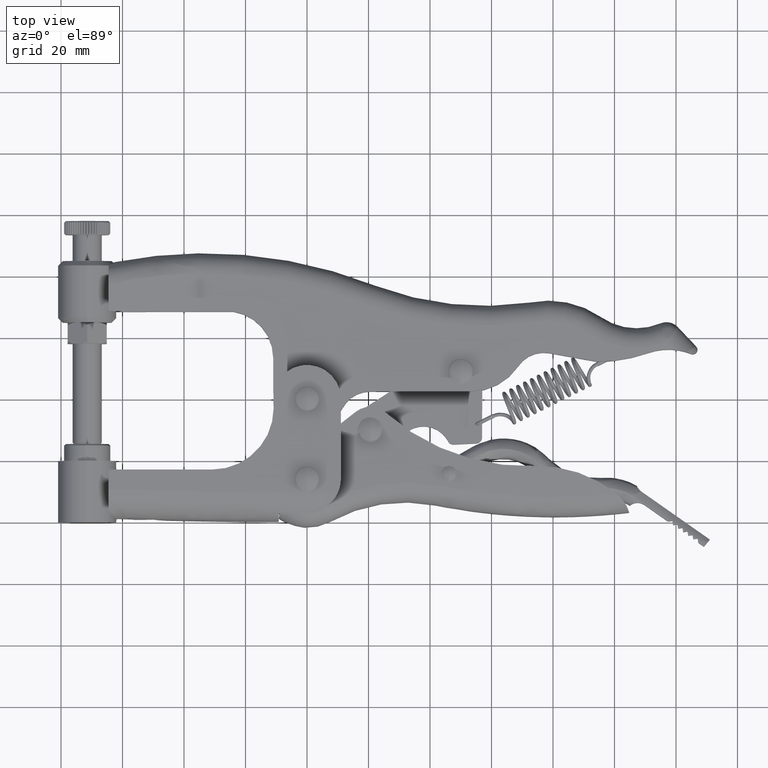
[diagram: clean part render]
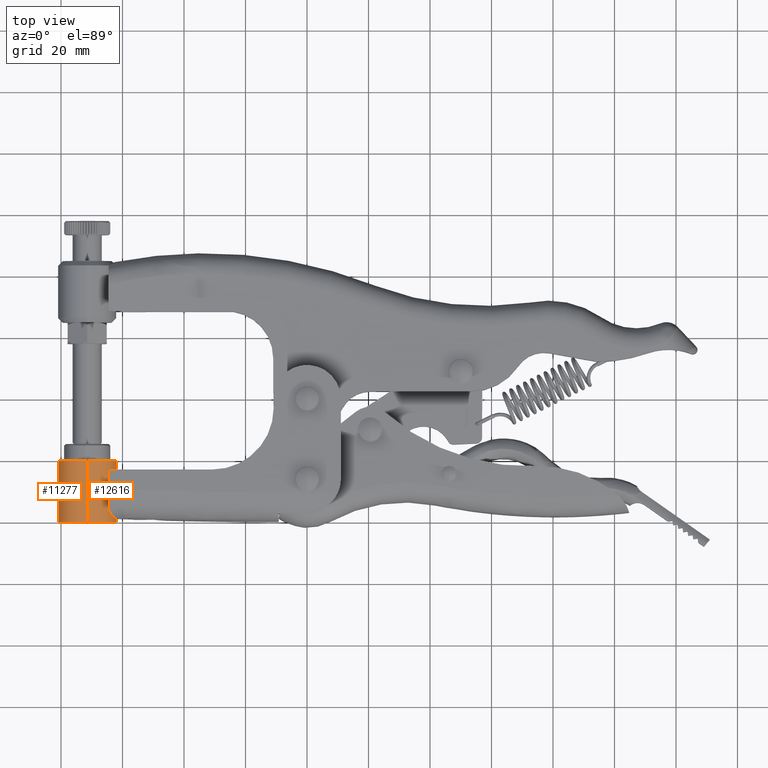
[diagram: same view with one multi-face feature highlighted, each face labeled with its STEP entity id]
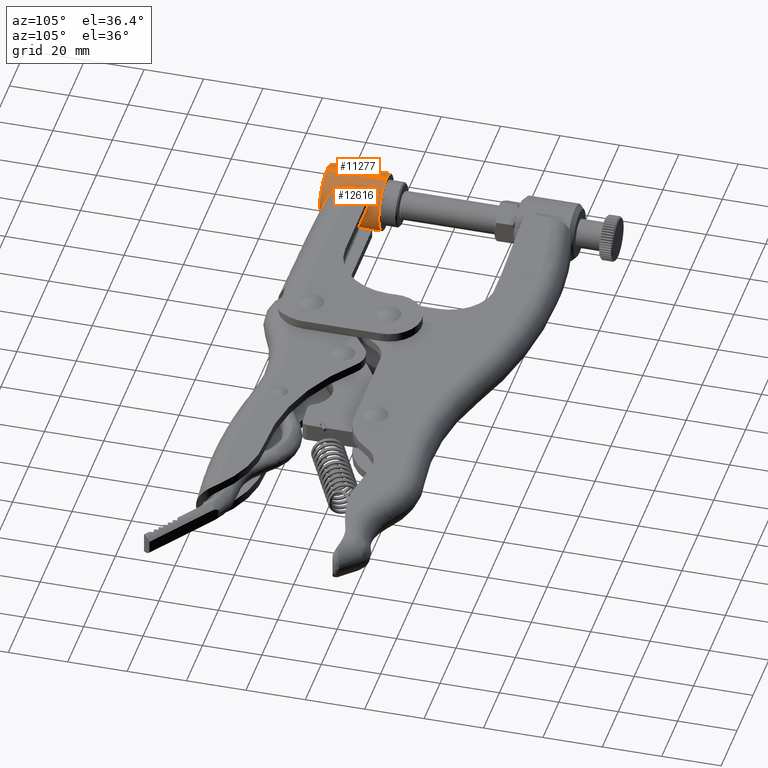
[diagram: same view with one multi-face feature highlighted, each face labeled with its STEP entity id]
A machine part, top view. The highlighted faces form ONE feature: a constant-radius fillet chain: 2 tangent blend faces with common blend radius 9.5 mm. The faces share edges in the B-rep.
A second angle (auxiliary view) of the same feature is appended — it is thin or edge-on in the first view.
Their STEP definitions:
[1] entity #11277 (Cylinder):
#1508 = CIRCLE ( 'NONE', #6993, 9.500000000000000000 ) ;
#2298 = EDGE_LOOP ( 'NONE', ( #14921, #24114, #10956, #23519 ) ) ;
#3883 = VERTEX_POINT ( 'NONE', #24603 ) ;
#4673 = CARTESIAN_POINT ( 'NONE',  ( -71.50000000007058500, -20.08000000000008400, 2.356861862865605300E-015 ) ) ;
#5699 = CARTESIAN_POINT ( 'NONE',  ( -71.50000000007058500, -20.08000000000008400, 9.500000000000001800 ) ) ;
#6993 = AXIS2_PLACEMENT_3D ( 'NONE', #13483, #30051, #15860 ) ;
#7987 = CYLINDRICAL_SURFACE ( 'NONE', #30057, 9.500000000000000000 ) ;
#8844 = CARTESIAN_POINT ( 'NONE',  ( -71.50000000007058500, -40.08000000000009100, 9.500000000000001800 ) ) ;
#10956 = ORIENTED_EDGE ( 'NONE', *, *, #17403, .T. ) ;
#11277 = ADVANCED_FACE ( 'NONE', ( #14315 ), #7987, .T. ) ;
#12444 = VERTEX_POINT ( 'NONE', #23876 ) ;
#12850 = DIRECTION ( 'NONE',  ( -0.0000000000000000000, -1.000000000000000000, -0.0000000000000000000 ) ) ;
#13169 = DIRECTION ( 'NONE',  ( 0.0000000000000000000, 1.000000000000000000, 0.0000000000000000000 ) ) ;
#13483 = CARTESIAN_POINT ( 'NONE',  ( -71.50000000007058500, -20.08000000000008400, 2.356861862865605300E-015 ) ) ;
#14315 = FACE_OUTER_BOUND ( 'NONE', #2298, .T. ) ;
#14921 = ORIENTED_EDGE ( 'NONE', *, *, #30088, .F. ) ;
#15176 = DIRECTION ( 'NONE',  ( -0.0000000000000000000, -1.000000000000000000, -0.0000000000000000000 ) ) ;
#15696 = LINE ( 'NONE', #5699, #27576 ) ;
#15860 = DIRECTION ( 'NONE',  ( 0.0000000000000000000, 0.0000000000000000000, 1.000000000000000000 ) ) ;
#16000 = VERTEX_POINT ( 'NONE', #17530 ) ;
#17403 = EDGE_CURVE ( 'NONE', #3883, #12444, #24895, .T. ) ;
#17530 = CARTESIAN_POINT ( 'NONE',  ( -71.50000000007058500, -20.08000000000008400, 9.500000000000001800 ) ) ;
#17729 = VERTEX_POINT ( 'NONE', #8844 ) ;
#18589 = VECTOR ( 'NONE', #15176, 1000.000000000000000 ) ;
#21234 = DIRECTION ( 'NONE',  ( -0.0000000000000000000, -1.000000000000000000, -0.0000000000000000000 ) ) ;
#21776 = EDGE_CURVE ( 'NONE', #12444, #17729, #28208, .T. ) ;
#21924 = EDGE_CURVE ( 'NONE', #3883, #16000, #1508, .T. ) ;
#23519 = ORIENTED_EDGE ( 'NONE', *, *, #21776, .T. ) ;
#23876 = CARTESIAN_POINT ( 'NONE',  ( -71.50000000007058500, -40.08000000000009100, -9.499999999999998200 ) ) ;
#24114 = ORIENTED_EDGE ( 'NONE', *, *, #21924, .F. ) ;
#24603 = CARTESIAN_POINT ( 'NONE',  ( -71.50000000007058500, -20.08000000000008400, -9.499999999999998200 ) ) ;
#24625 = CARTESIAN_POINT ( 'NONE',  ( -71.50000000007058500, -20.08000000000008400, -9.499999999999998200 ) ) ;
#24895 = LINE ( 'NONE', #24625, #18589 ) ;
#27370 = CARTESIAN_POINT ( 'NONE',  ( -71.50000000007058500, -40.08000000000009100, 2.356861862865605300E-015 ) ) ;
#27576 = VECTOR ( 'NONE', #12850, 1000.000000000000000 ) ;
#28208 = CIRCLE ( 'NONE', #28250, 9.500000000000000000 ) ;
#28250 = AXIS2_PLACEMENT_3D ( 'NONE', #27370, #13169, #29742 ) ;
#29742 = DIRECTION ( 'NONE',  ( 0.0000000000000000000, 0.0000000000000000000, 1.000000000000000000 ) ) ;
#30051 = DIRECTION ( 'NONE',  ( 0.0000000000000000000, 1.000000000000000000, 0.0000000000000000000 ) ) ;
#30057 = AXIS2_PLACEMENT_3D ( 'NONE', #4673, #21234, #30563 ) ;
#30088 = EDGE_CURVE ( 'NONE', #16000, #17729, #15696, .T. ) ;
#30563 = DIRECTION ( 'NONE',  ( 0.0000000000000000000, 0.0000000000000000000, -1.000000000000000000 ) ) ;
[2] entity #12616 (Cylinder):
#276 = CARTESIAN_POINT ( 'NONE',  ( -63.66873752018189900, -33.19085159309631200, -5.383097506780270400 ) ) ;
#369 = CARTESIAN_POINT ( 'NONE',  ( -62.00018189158113600, -36.01688755221508100, -0.2032330532681224100 ) ) ;
#405 = CARTESIAN_POINT ( 'NONE',  ( -64.49999999999995700, -44.82483779516833500, -6.422616289255547200 ) ) ;
#470 = CARTESIAN_POINT ( 'NONE',  ( -63.94626198162362100, -32.57586115584202000, 5.765960569321396000 ) ) ;
#688 = CARTESIAN_POINT ( 'NONE',  ( -71.50000000007058500, -20.08000000000008400, 2.356861862865605300E-015 ) ) ;
#821 = CARTESIAN_POINT ( 'NONE',  ( -62.83160810248247700, -38.16673595354426100, -3.898178235663626500 ) ) ;
#928 = CARTESIAN_POINT ( 'NONE',  ( -62.50335281598697200, -38.50300976454805400, 3.066549485214240100 ) ) ;
#1094 = VERTEX_POINT ( 'NONE', #6468 ) ;
#1248 = EDGE_CURVE ( 'NONE', #28625, #1094, #4802, .T. ) ;
#1667 = EDGE_LOOP ( 'NONE', ( #2420, #23541, #29625, #10041 ) ) ;
#1955 = ORIENTED_EDGE ( 'NONE', *, *, #23970, .F. ) ;
#1960 = LINE ( 'NONE', #30581, #8219 ) ;
#2339 = CARTESIAN_POINT ( 'NONE',  ( -64.50000000000005700, -30.84296218311604300, -6.422616289255660000 ) ) ;
#2420 = ORIENTED_EDGE ( 'NONE', *, *, #16298, .T. ) ;
#2641 = CARTESIAN_POINT ( 'NONE',  ( -63.23913094217596900, -34.01924217925407100, -4.699334689974348200 ) ) ;
#2748 = CARTESIAN_POINT ( 'NONE',  ( -62.02310362345634300, -35.98319486392855300, 0.7638834789930201200 ) ) ;
#2858 = CARTESIAN_POINT ( 'NONE',  ( -64.31741614749044800, -31.56626122569650800, 6.220534707599197700 ) ) ;
#3193 = CARTESIAN_POINT ( 'NONE',  ( -62.50513133100664500, -38.50118723790780000, -3.071766348928229200 ) ) ;
#3287 = CARTESIAN_POINT ( 'NONE',  ( -62.94346931941296900, -38.05215480852729800, 4.169655955160283900 ) ) ;
#3883 = VERTEX_POINT ( 'NONE', #24603 ) ;
#4802 = B_SPLINE_CURVE_WITH_KNOTS ( 'NONE', 3,
 ( #2339, #19101, #9644, #26237, #12043, #28631, #14431, #276, #16822, #2641, #19198, #5007, #21570, #7364, #23962, #9756, #26333, #12139, #28739, #14535, #369, #16927, #2748, #19296, #5097, #21676, #7465, #24060, #9856, #26445, #12241, #28839, #14640, #470, #17025, #2858, #19404, #5195 ),
 .UNSPECIFIED., .F., .F.,
 ( 4, 2, 2, 2, 2, 2, 2, 2, 2, 2, 2, 2, 2, 2, 2, 2, 2, 2, 4 ),
 ( 0.001545405984978420400, 0.002121452608663552500, 0.002697499232348674900, 0.003849592479718889400, 0.005001685727089104700, 0.006153778974459319200, 0.008457965469199749800, 0.009034012092884857000, 0.009610058716569964300, 0.01018610534025507300, 0.01076215196394018000, 0.01191424521131039500, 0.01306633845868061100, 0.01421843170605082400, 0.01537052495342103800, 0.01652261820079125400, 0.01767471144816146900, 0.01882680469553168700, 0.01997889794290190100 ),
 .UNSPECIFIED. ) ;
#5007 = CARTESIAN_POINT ( 'NONE',  ( -62.68669554098424600, -34.97033177221842900, -3.600692583240153500 ) ) ;
#5097 = CARTESIAN_POINT ( 'NONE',  ( -62.18367957402561800, -35.74394037218538500, 1.894367866966228500 ) ) ;
#5195 = CARTESIAN_POINT ( 'NONE',  ( -64.49999999999997200, -30.84296218312960700, 6.422616289255561400 ) ) ;
#5342 = CARTESIAN_POINT ( 'NONE',  ( -71.50000000007058500, -40.08000000000009100, 2.356861862865605300E-015 ) ) ;
#5552 = CARTESIAN_POINT ( 'NONE',  ( -62.24944504615629600, -38.76325784849543500, -2.184816838020719100 ) ) ;
#5659 = CARTESIAN_POINT ( 'NONE',  ( -63.81723920575537100, -37.15846250520042600, 5.615341839444072400 ) ) ;
#5699 = CARTESIAN_POINT ( 'NONE',  ( -71.50000000007058500, -20.08000000000008400, 9.500000000000001800 ) ) ;
#6468 = CARTESIAN_POINT ( 'NONE',  ( -64.49999999999997200, -30.84296218312960700, 6.422616289255561400 ) ) ;
#6517 = DIRECTION ( 'NONE',  ( 0.0000000000000000000, 1.000000000000000000, 0.0000000000000000000 ) ) ;
#6626 = AXIS2_PLACEMENT_3D ( 'NONE', #5342, #21914, #7715 ) ;
#7364 = CARTESIAN_POINT ( 'NONE',  ( -62.23081774885776000, -35.67213790946004100, -2.089370335022430000 ) ) ;
#7465 = CARTESIAN_POINT ( 'NONE',  ( -62.45958410917348400, -35.32142103028996900, 2.939107917444899100 ) ) ;
#7715 = DIRECTION ( 'NONE',  ( 0.0000000000000000000, 0.0000000000000000000, 1.000000000000000000 ) ) ;
#7822 = LINE ( 'NONE', #405, #15619 ) ;
#7931 = CARTESIAN_POINT ( 'NONE',  ( -62.00065275564128300, -39.01836515483120100, -0.6495609234300230300 ) ) ;
#8029 = CARTESIAN_POINT ( 'NONE',  ( -64.49999999999973000, -36.46207715938677300, 6.422616289255329600 ) ) ;
#8162 = ORIENTED_EDGE ( 'NONE', *, *, #17403, .F. ) ;
#8219 = VECTOR ( 'NONE', #18772, 1000.000000000000000 ) ;
#8844 = CARTESIAN_POINT ( 'NONE',  ( -71.50000000007058500, -40.08000000000009100, 9.500000000000001800 ) ) ;
#9216 = CIRCLE ( 'NONE', #30042, 9.500000000000000000 ) ;
#9346 = EDGE_LOOP ( 'NONE', ( #1955, #21777, #18339, #8162 ) ) ;
#9644 = CARTESIAN_POINT ( 'NONE',  ( -64.41411422680283700, -31.21022736100194500, -6.328204741979845100 ) ) ;
#9756 = CARTESIAN_POINT ( 'NONE',  ( -62.12346986918293400, -35.83377371347275900, -1.538097636001307200 ) ) ;
#9787 = EDGE_CURVE ( 'NONE', #18981, #28758, #18889, .T. ) ;
#9856 = CARTESIAN_POINT ( 'NONE',  ( -62.82367992039715400, -34.73684390611968100, 3.881693367867254300 ) ) ;
#10041 = ORIENTED_EDGE ( 'NONE', *, *, #9787, .T. ) ;
#10108 = CARTESIAN_POINT ( 'NONE',  ( -64.14783263699594300, -36.82084701366866100, -6.038789600873543300 ) ) ;
#10309 = CARTESIAN_POINT ( 'NONE',  ( -62.01570641596556000, -39.00292613714462700, 0.6306110181311691500 ) ) ;
#12043 = CARTESIAN_POINT ( 'NONE',  ( -64.25675742871656800, -31.74085018131849600, -6.147678859979947700 ) ) ;
#12139 = CARTESIAN_POINT ( 'NONE',  ( -62.04827796561500000, -35.94576477343170500, -0.9751747919469322400 ) ) ;
#12241 = CARTESIAN_POINT ( 'NONE',  ( -63.23895144326225900, -34.01964801933175400, 4.699129397185034300 ) ) ;
#12391 = AXIS2_PLACEMENT_3D ( 'NONE', #688, #26662, #24275 ) ;
#12444 = VERTEX_POINT ( 'NONE', #23876 ) ;
#12597 = CARTESIAN_POINT ( 'NONE',  ( -63.36608672287008700, -37.61970214878269300, -4.915979780337694100 ) ) ;
#12616 = ADVANCED_FACE ( 'NONE', ( #19090, #26130 ), #24661, .T. ) ;
#12703 = CARTESIAN_POINT ( 'NONE',  ( -62.12510325444739600, -38.89074221351591400, 1.567925439519908700 ) ) ;
#12850 = DIRECTION ( 'NONE',  ( -0.0000000000000000000, -1.000000000000000000, -0.0000000000000000000 ) ) ;
#14195 = CARTESIAN_POINT ( 'NONE',  ( -64.50000000000005700, -30.84296218311604300, -6.422616289255660000 ) ) ;
#14431 = CARTESIAN_POINT ( 'NONE',  ( -63.94751885715157900, -32.57310056898456500, -5.767706596409775300 ) ) ;
#14535 = CARTESIAN_POINT ( 'NONE',  ( -62.00643460122086700, -36.00766881817046500, -0.3993550262527698100 ) ) ;
#14640 = CARTESIAN_POINT ( 'NONE',  ( -63.67032913191378200, -33.18734923534422200, 5.385305324179538100 ) ) ;
#14984 = CARTESIAN_POINT ( 'NONE',  ( -62.95495818146213900, -38.04042496837043100, -4.161092198323451900 ) ) ;
#15082 = CARTESIAN_POINT ( 'NONE',  ( -62.32486932039316900, -38.68593577946897700, 2.482007919203713000 ) ) ;
#15176 = DIRECTION ( 'NONE',  ( -0.0000000000000000000, -1.000000000000000000, -0.0000000000000000000 ) ) ;
#15619 = VECTOR ( 'NONE', #16959, 1000.000000000000000 ) ;
#15696 = LINE ( 'NONE', #5699, #27576 ) ;
#16000 = VERTEX_POINT ( 'NONE', #17530 ) ;
#16298 = EDGE_CURVE ( 'NONE', #28758, #1094, #1960, .T. ) ;
#16822 = CARTESIAN_POINT ( 'NONE',  ( -63.52495908711125600, -33.47910983888069600, -5.169567347148282400 ) ) ;
#16927 = CARTESIAN_POINT ( 'NONE',  ( -61.99964813544870900, -36.01767522935761400, 0.3804017897917979500 ) ) ;
#16959 = DIRECTION ( 'NONE',  ( -7.537373503119224900E-016, -1.000000000000000000, 7.126397290674516900E-044 ) ) ;
#17025 = CARTESIAN_POINT ( 'NONE',  ( -64.07954233627853600, -32.25043565215290900, 5.934759549270769900 ) ) ;
#17372 = CARTESIAN_POINT ( 'NONE',  ( -62.60670029031943800, -38.39711119472458700, -3.353510387595729300 ) ) ;
#17403 = EDGE_CURVE ( 'NONE', #3883, #12444, #24895, .T. ) ;
#17468 = CARTESIAN_POINT ( 'NONE',  ( -62.60496012071494200, -38.39889398105649600, 3.349003965813981900 ) ) ;
#17530 = CARTESIAN_POINT ( 'NONE',  ( -71.50000000007058500, -20.08000000000008400, 9.500000000000001800 ) ) ;
#17729 = VERTEX_POINT ( 'NONE', #8844 ) ;
#18339 = ORIENTED_EDGE ( 'NONE', *, *, #24556, .T. ) ;
#18530 = EDGE_CURVE ( 'NONE', #28625, #18981, #7822, .T. ) ;
#18589 = VECTOR ( 'NONE', #15176, 1000.000000000000000 ) ;
#18772 = DIRECTION ( 'NONE',  ( 7.537373503119224900E-016, 1.000000000000000000, -7.126397290674516900E-044 ) ) ;
#18889 = B_SPLINE_CURVE_WITH_KNOTS ( 'NONE', 3,
 ( #24415, #10108, #26803, #12597, #29190, #14984, #821, #17372, #3193, #19753, #5552, #22127, #7931, #24520, #10309, #26907, #12703, #29282, #15082, #928, #17468, #3287, #19860, #5659, #22228, #8029 ),
 .UNSPECIFIED., .F., .F.,
 ( 4, 2, 2, 2, 2, 2, 2, 2, 2, 2, 2, 2, 4 ),
 ( 0.001187497982485166400, 0.003082276671273599300, 0.004029666015667821500, 0.004977055360062043700, 0.005924444704456266000, 0.006871834048850483000, 0.008766612737638915200, 0.009714002082033133100, 0.01066139142642734600, 0.01160878077082156200, 0.01255617011521577100, 0.01445094880400419300, 0.01634572749279261300 ),
 .UNSPECIFIED. ) ;
#18981 = VERTEX_POINT ( 'NONE', #19141 ) ;
#19090 = FACE_BOUND ( 'NONE', #1667, .T. ) ;
#19101 = CARTESIAN_POINT ( 'NONE',  ( -64.46036555757883900, -31.02710319901029100, -6.379418769046332600 ) ) ;
#19141 = CARTESIAN_POINT ( 'NONE',  ( -64.49999999999994300, -36.46207715938935900, -6.422616289255568500 ) ) ;
#19198 = CARTESIAN_POINT ( 'NONE',  ( -63.09669407140835800, -34.27158148138966700, -4.442046838023851600 ) ) ;
#19296 = CARTESIAN_POINT ( 'NONE',  ( -62.11468090605472300, -35.84699871591919200, 1.520154073133332700 ) ) ;
#19360 = CARTESIAN_POINT ( 'NONE',  ( -64.49999999999973000, -36.46207715938677300, 6.422616289255329600 ) ) ;
#19404 = CARTESIAN_POINT ( 'NONE',  ( -64.42057349869952500, -31.21197649859209700, 6.336049462892479100 ) ) ;
#19753 = CARTESIAN_POINT ( 'NONE',  ( -62.32628784541235200, -38.68448169488822700, -2.487250727126606400 ) ) ;
#19860 = CARTESIAN_POINT ( 'NONE',  ( -63.21664385420098900, -37.77248633457365700, 4.684323681937694800 ) ) ;
#20716 = CARTESIAN_POINT ( 'NONE',  ( -71.50000000007058500, -20.08000000000008400, 2.356861862865605300E-015 ) ) ;
#21570 = CARTESIAN_POINT ( 'NONE',  ( -62.44818431337724700, -35.34067807557361400, -2.974216001446325500 ) ) ;
#21676 = CARTESIAN_POINT ( 'NONE',  ( -62.35591950967589300, -35.48144568275489500, 2.601585647507981500 ) ) ;
#21777 = ORIENTED_EDGE ( 'NONE', *, *, #30088, .T. ) ;
#21914 = DIRECTION ( 'NONE',  ( 0.0000000000000000000, 1.000000000000000000, 0.0000000000000000000 ) ) ;
#22127 = CARTESIAN_POINT ( 'NONE',  ( -62.06523612017795000, -38.95212218842711100, -1.272790954957884600 ) ) ;
#22174 = CIRCLE ( 'NONE', #6626, 9.500000000000000000 ) ;
#22228 = CARTESIAN_POINT ( 'NONE',  ( -64.14639725914116800, -36.82230930220064400, 6.037225184671091100 ) ) ;
#23095 = DIRECTION ( 'NONE',  ( 0.0000000000000000000, 0.0000000000000000000, 1.000000000000000000 ) ) ;
#23541 = ORIENTED_EDGE ( 'NONE', *, *, #1248, .F. ) ;
#23876 = CARTESIAN_POINT ( 'NONE',  ( -71.50000000007058500, -40.08000000000009100, -9.499999999999998200 ) ) ;
#23962 = CARTESIAN_POINT ( 'NONE',  ( -62.19136157980745600, -35.73174566416288700, -1.906387262367630600 ) ) ;
#23970 = EDGE_CURVE ( 'NONE', #16000, #3883, #9216, .T. ) ;
#24060 = CARTESIAN_POINT ( 'NONE',  ( -62.69489029308961400, -34.94685605723444900, 3.582948210454920600 ) ) ;
#24275 = DIRECTION ( 'NONE',  ( 0.0000000000000000000, 0.0000000000000000000, -1.000000000000000000 ) ) ;
#24415 = CARTESIAN_POINT ( 'NONE',  ( -64.49999999999994300, -36.46207715938935900, -6.422616289255568500 ) ) ;
#24520 = CARTESIAN_POINT ( 'NONE',  ( -61.99968092526963700, -39.01936182718237200, 0.3103535771429192200 ) ) ;
#24556 = EDGE_CURVE ( 'NONE', #17729, #12444, #22174, .T. ) ;
#24603 = CARTESIAN_POINT ( 'NONE',  ( -71.50000000007058500, -20.08000000000008400, -9.499999999999998200 ) ) ;
#24625 = CARTESIAN_POINT ( 'NONE',  ( -71.50000000007058500, -20.08000000000008400, -9.499999999999998200 ) ) ;
#24661 = CYLINDRICAL_SURFACE ( 'NONE', #12391, 9.500000000000000000 ) ;
#24895 = LINE ( 'NONE', #24625, #18589 ) ;
#26130 = FACE_OUTER_BOUND ( 'NONE', #9346, .T. ) ;
#26237 = CARTESIAN_POINT ( 'NONE',  ( -64.31226946492424200, -31.56706261421644300, -6.212284781168637700 ) ) ;
#26333 = CARTESIAN_POINT ( 'NONE',  ( -62.09476424951911600, -35.87660825662079100, -1.351871209845929300 ) ) ;
#26445 = CARTESIAN_POINT ( 'NONE',  ( -63.09515994181401100, -34.27422472959873500, 4.439001815973341500 ) ) ;
#26662 = DIRECTION ( 'NONE',  ( -0.0000000000000000000, -1.000000000000000000, -0.0000000000000000000 ) ) ;
#26803 = CARTESIAN_POINT ( 'NONE',  ( -63.81852844479500700, -37.15714440462158300, -5.617348516188193300 ) ) ;
#26907 = CARTESIAN_POINT ( 'NONE',  ( -62.07842530268651900, -38.93860843033714800, 1.258342269534219000 ) ) ;
#27576 = VECTOR ( 'NONE', #12850, 1000.000000000000000 ) ;
#28625 = VERTEX_POINT ( 'NONE', #14195 ) ;
#28631 = CARTESIAN_POINT ( 'NONE',  ( -64.07964673707512300, -32.24988921342923500, -5.934848835819750000 ) ) ;
#28739 = CARTESIAN_POINT ( 'NONE',  ( -62.03049598829290500, -35.97208789557919300, -0.7847051612905343600 ) ) ;
#28758 = VERTEX_POINT ( 'NONE', #19360 ) ;
#28839 = CARTESIAN_POINT ( 'NONE',  ( -63.52680926307187500, -33.47554651589786800, 5.172520644798955100 ) ) ;
#29190 = CARTESIAN_POINT ( 'NONE',  ( -63.22183085666681300, -37.76728279102603400, -4.669512137034594400 ) ) ;
#29282 = CARTESIAN_POINT ( 'NONE',  ( -62.24798741278708300, -38.76475217411107400, 2.178839659024318200 ) ) ;
#29625 = ORIENTED_EDGE ( 'NONE', *, *, #18530, .T. ) ;
#30042 = AXIS2_PLACEMENT_3D ( 'NONE', #20716, #6517, #23095 ) ;
#30088 = EDGE_CURVE ( 'NONE', #16000, #17729, #15696, .T. ) ;
#30581 = CARTESIAN_POINT ( 'NONE',  ( -64.49999999999995700, -44.82483779516833500, 6.422616289255547200 ) ) ;